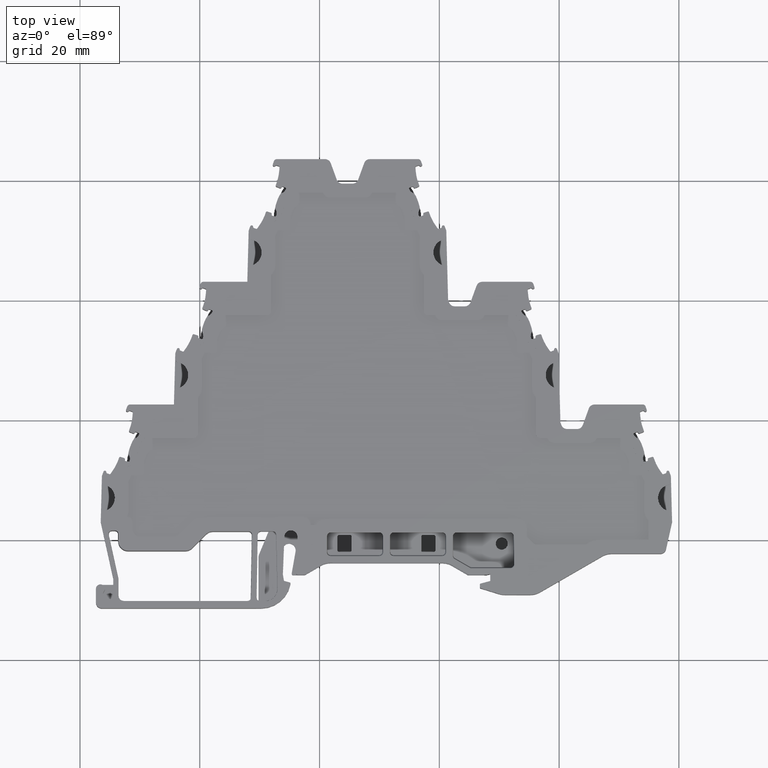
[diagram: clean part render]
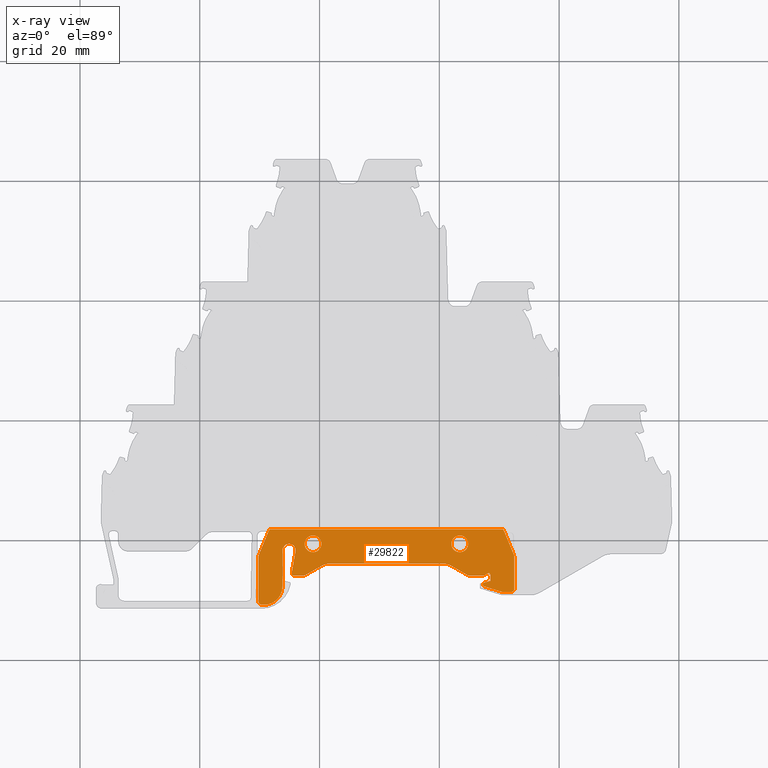
[diagram: x-ray — body ghosted, one internal face saturated and labeled with its STEP entity id]
A machine part, top view, then the same camera in x-ray: the body is ghosted and one INTERNAL B-rep face — a face not visible from any outside direction — is saturated and labeled: STEP entity #29822.
In plain terms, the highlighted planar face has unit normal (0, -0, 1).
Its self-contained STEP definition (entity closure, byte-faithful):
#240 = CIRCLE ( 'NONE', #26142, 2.999999999999891642 ) ;
#325 = EDGE_CURVE ( 'NONE', #29279, #18801, #23444, .T. ) ;
#414 = EDGE_CURVE ( 'NONE', #26152, #15597, #3656, .T. ) ;
#714 = AXIS2_PLACEMENT_3D ( 'NONE', #6016, #19792, #22988 ) ;
#840 = ORIENTED_EDGE ( 'NONE', *, *, #31770, .T. ) ;
#1005 = CARTESIAN_POINT ( 'NONE',  ( 1253.811855569803811, 752.3099273790719508, 2.925000000002854872 ) ) ;
#1011 = CARTESIAN_POINT ( 'NONE',  ( 1284.936141302275928, 754.6099145043730232, 2.925000000009629897 ) ) ;
#1031 = CIRCLE ( 'NONE', #36522, 1.999999999999779732 ) ;
#1363 = CARTESIAN_POINT ( 'NONE',  ( 1292.511858430823850, 751.8485278146081328, 2.925000000001610090 ) ) ;
#1431 = CARTESIAN_POINT ( 'NONE',  ( 1287.410230152805980, 754.1099145043660883, 2.925000000008290080 ) ) ;
#1462 = EDGE_CURVE ( 'NONE', #23473, #7901, #27103, .T. ) ;
#1498 = VERTEX_POINT ( 'NONE', #1431 ) ;
#1582 = VERTEX_POINT ( 'NONE', #19725 ) ;
#1717 = CARTESIAN_POINT ( 'NONE',  ( 1287.452812872483946, 752.8761448930290499, 2.925000000004515321 ) ) ;
#1894 = ORIENTED_EDGE ( 'NONE', *, *, #22036, .F. ) ;
#2020 = CIRCLE ( 'NONE', #5657, 0.2999999999997449152 ) ;
#2101 = DIRECTION ( 'NONE',  ( 0.000000000000000000, -1.000000000000000000, -4.731148508677230479E-12 ) ) ;
#2128 = CARTESIAN_POINT ( 'NONE',  ( 1292.435737963354086, 757.5829825613909634, 2.925000000018485480 ) ) ;
#2138 = CARTESIAN_POINT ( 'NONE',  ( 1291.511858430842040, 757.2002991290289629, 2.925000000017380142 ) ) ;
#2167 = DIRECTION ( 'NONE',  ( -3.108624468950090558E-12, -1.000000000000000000, -2.961172973492078515E-12 ) ) ;
#2362 = DIRECTION ( 'NONE',  ( -1.776356830050185078E-15, 2.961114267037269966E-12, -1.000000000000000000 ) ) ;
#2365 = EDGE_CURVE ( 'NONE', #8663, #13167, #18823, .T. ) ;
#2600 = VERTEX_POINT ( 'NONE', #3907 ) ;
#2743 = AXIS2_PLACEMENT_3D ( 'NONE', #34006, #8407, #2167 ) ;
#2902 = EDGE_CURVE ( 'NONE', #13167, #28397, #5212, .T. ) ;
#2972 = DIRECTION ( 'NONE',  ( 1.776356830050185078E-15, -2.961114267037269966E-12, 1.000000000000000000 ) ) ;
#3001 = DIRECTION ( 'NONE',  ( 0.000000000000000000, -1.000000000000000000, -4.731148508677230479E-12 ) ) ;
#3004 = CARTESIAN_POINT ( 'NONE',  ( 1258.911855569846011, 757.9850622030869545, 2.925000000011626522 ) ) ;
#3138 = VECTOR ( 'NONE', #32093, 1000.000000000000000 ) ;
#3194 = VERTEX_POINT ( 'NONE', #16680 ) ;
#3350 = CARTESIAN_POINT ( 'NONE',  ( 1288.511858430829989, 753.1599273789660174, 2.925000000005400391 ) ) ;
#3355 = CIRCLE ( 'NONE', #24413, 3.083962780616844590 ) ;
#3500 = ORIENTED_EDGE ( 'NONE', *, *, #15295, .T. ) ;
#3616 = EDGE_CURVE ( 'NONE', #29126, #37273, #18345, .T. ) ;
#3656 = LINE ( 'NONE', #6479, #3138 ) ;
#3907 = CARTESIAN_POINT ( 'NONE',  ( 1258.911855569846011, 760.7850622030870227, 2.925000000024873703 ) ) ;
#4016 = EDGE_CURVE ( 'NONE', #27369, #18910, #37248, .T. ) ;
#4223 = CARTESIAN_POINT ( 'NONE',  ( 1284.936141302275928, 754.1099145043730232, 2.925000000008294965 ) ) ;
#4697 = ORIENTED_EDGE ( 'NONE', *, *, #21969, .T. ) ;
#4963 = ORIENTED_EDGE ( 'NONE', *, *, #21595, .T. ) ;
#5061 = CARTESIAN_POINT ( 'NONE',  ( 1261.762938052043864, 756.0945901753040062, 2.925000000013930013 ) ) ;
#5102 = ORIENTED_EDGE ( 'NONE', *, *, #10842, .T. ) ;
#5142 = CARTESIAN_POINT ( 'NONE',  ( 1287.267520204509992, 752.5328591790330393, 2.925000000003625367 ) ) ;
#5212 = LINE ( 'NONE', #13880, #13573 ) ;
#5236 = CARTESIAN_POINT ( 'NONE',  ( 1251.688721857542077, 761.8130462823679636, 2.925000000030876457 ) ) ;
#5299 = ORIENTED_EDGE ( 'NONE', *, *, #27513, .F. ) ;
#5360 = VECTOR ( 'NONE', #5858, 1000.000000000000000 ) ;
#5548 = DIRECTION ( 'NONE',  ( -1.776356830050185078E-15, 2.961114267037269966E-12, -1.000000000000000000 ) ) ;
#5551 = DIRECTION ( 'NONE',  ( -1.776356830050185078E-15, 2.961114267037269966E-12, -1.000000000000000000 ) ) ;
#5657 = AXIS2_PLACEMENT_3D ( 'NONE', #33579, #13242, #27754 ) ;
#5691 = CIRCLE ( 'NONE', #26758, 0.2999999999999669598 ) ;
#5784 = EDGE_CURVE ( 'NONE', #13312, #32119, #6366, .T. ) ;
#5812 = EDGE_CURVE ( 'NONE', #18801, #25091, #3355, .T. ) ;
#5858 = DIRECTION ( 'NONE',  ( 5.241255640397440142E-12, 1.000000000000000000, 2.967515460675540136E-12 ) ) ;
#5958 = DIRECTION ( 'NONE',  ( 1.776356830050185078E-15, -2.961114267037269966E-12, 1.000000000000000000 ) ) ;
#6016 = CARTESIAN_POINT ( 'NONE',  ( 1292.011858430824077, 751.8485278146090423, 2.925000000001610090 ) ) ;
#6186 = DIRECTION ( 'NONE',  ( 3.060176890657050133E-12, 1.000000000000000000, 4.731069912806530501E-12 ) ) ;
#6239 = EDGE_CURVE ( 'NONE', #33395, #2600, #28653, .T. ) ;
#6255 = ORIENTED_EDGE ( 'NONE', *, *, #34212, .T. ) ;
#6285 = ORIENTED_EDGE ( 'NONE', *, *, #2365, .T. ) ;
#6316 = CARTESIAN_POINT ( 'NONE',  ( 1290.837735783956077, 761.4409010956278507, 2.925000000029815084 ) ) ;
#6330 = VECTOR ( 'NONE', #33388, 1000.000000000000000 ) ;
#6366 = CIRCLE ( 'NONE', #2743, 0.5000000000000559552 ) ;
#6387 = ORIENTED_EDGE ( 'NONE', *, *, #33724, .T. ) ;
#6445 = ORIENTED_EDGE ( 'NONE', *, *, #4016, .T. ) ;
#6479 = CARTESIAN_POINT ( 'NONE',  ( 1287.560225396755868, 754.1501041373810494, 2.925000000008290080 ) ) ;
#6577 = DIRECTION ( 'NONE',  ( -2.960594732334076854E-12, -1.000000000000000000, -2.960594732334076854E-12 ) ) ;
#6806 = ORIENTED_EDGE ( 'NONE', *, *, #12502, .F. ) ;
#6852 = CARTESIAN_POINT ( 'NONE',  ( 1250.811858430841994, 757.2003129434050379, 2.925000000017300206 ) ) ;
#7081 = CARTESIAN_POINT ( 'NONE',  ( 1284.936141302275928, 754.1099145043730232, 2.925000000008294965 ) ) ;
#7133 = ORIENTED_EDGE ( 'NONE', *, *, #2902, .T. ) ;
#7364 = DIRECTION ( 'NONE',  ( -1.000000000000000000, 2.906425021968365003E-12, 3.491481338098295227E-15 ) ) ;
#7395 = DIRECTION ( 'NONE',  ( -3.101666818361324906E-12, -1.000000000000000000, -2.967515460675544983E-12 ) ) ;
#7417 = EDGE_LOOP ( 'NONE', ( #19159, #29010, #25562, #25054, #36173, #4697, #12012, #24582, #25756, #6387, #6445, #16759, #28025, #6255, #26220, #3500, #21936, #21063, #22741, #10500, #10198, #20044, #15316, #5102, #36641, #4963, #11953, #31160, #28563, #15142, #9524, #22967, #34968, #6285, #7133, #22822, #840 ) ) ;
#7694 = AXIS2_PLACEMENT_3D ( 'NONE', #16385, #36718, #8277 ) ;
#7730 = FACE_BOUND ( 'NONE', #25542, .T. ) ;
#7811 = VERTEX_POINT ( 'NONE', #1717 ) ;
#7901 = VERTEX_POINT ( 'NONE', #8310 ) ;
#8277 = DIRECTION ( 'NONE',  ( -3.095990026788391174E-12, -1.000000000000000000, -2.961131086213806190E-12 ) ) ;
#8310 = CARTESIAN_POINT ( 'NONE',  ( 1255.647547140237975, 754.1099145044630632, 2.925000000008180390 ) ) ;
#8386 = VECTOR ( 'NONE', #21415, 1000.000000000000000 ) ;
#8407 = DIRECTION ( 'NONE',  ( -1.776356830050185078E-15, 2.961114267037269966E-12, -1.000000000000000000 ) ) ;
#8411 = VERTEX_POINT ( 'NONE', #6316 ) ;
#8458 = DIRECTION ( 'NONE',  ( -1.776356830050185078E-15, 2.961114267037269966E-12, -1.000000000000000000 ) ) ;
#8663 = VERTEX_POINT ( 'NONE', #36810 ) ;
#8720 = EDGE_CURVE ( 'NONE', #35089, #24379, #31601, .T. ) ;
#8730 = DIRECTION ( 'NONE',  ( 0.3826834323621278178, -0.9238795325125136459, -2.689788538315124249E-12 ) ) ;
#8832 = AXIS2_PLACEMENT_3D ( 'NONE', #25105, #27926, #2101 ) ;
#9071 = CARTESIAN_POINT ( 'NONE',  ( 1287.267520204509992, 752.6346641253010148, 2.925000000003850076 ) ) ;
#9127 = DIRECTION ( 'NONE',  ( -1.776356830050185078E-15, 2.961114267037269966E-12, -1.000000000000000000 ) ) ;
#9303 = DIRECTION ( 'NONE',  ( -4.776389567471609391E-07, -0.9999999999998858691, -2.967515459007549818E-12 ) ) ;
#9524 = ORIENTED_EDGE ( 'NONE', *, *, #325, .T. ) ;
#9582 = DIRECTION ( 'NONE',  ( 3.713265354292279509E-12, 1.000000000000000000, 2.967515460675544983E-12 ) ) ;
#9699 = CARTESIAN_POINT ( 'NONE',  ( 1278.661855569839872, 761.8130462823684184, 2.925000000029701841 ) ) ;
#9850 = EDGE_CURVE ( 'NONE', #19934, #8411, #12377, .T. ) ;
#9904 = CARTESIAN_POINT ( 'NONE',  ( 1288.989976718932212, 760.6755342309039634, 2.925000000027380143 ) ) ;
#9911 = DIRECTION ( 'NONE',  ( -0.8660238551023851095, -0.5000026823864079928, -1.480741984239946048E-12 ) ) ;
#9985 = DIRECTION ( 'NONE',  ( 0.3826834323680105010, 0.9238795325100768174, 2.740290664466149557E-12 ) ) ;
#10016 = CARTESIAN_POINT ( 'NONE',  ( 1283.411855569846011, 759.3850622030870454, 2.925000000018205260 ) ) ;
#10196 = AXIS2_PLACEMENT_3D ( 'NONE', #17654, #5958, #20478 ) ;
#10198 = ORIENTED_EDGE ( 'NONE', *, *, #3616, .T. ) ;
#10328 = EDGE_CURVE ( 'NONE', #15597, #1498, #2020, .T. ) ;
#10500 = ORIENTED_EDGE ( 'NONE', *, *, #12106, .T. ) ;
#10812 = VECTOR ( 'NONE', #15569, 1000.000000000000000 ) ;
#10842 = EDGE_CURVE ( 'NONE', #19424, #14954, #240, .T. ) ;
#11206 = DIRECTION ( 'NONE',  ( -3.108624468950607950E-12, -1.000000000000000000, -2.961172973492571269E-12 ) ) ;
#11440 = DIRECTION ( 'NONE',  ( 3.119670624889734695E-12, 1.000000000000000000, 2.937768593559204923E-12 ) ) ;
#11486 = EDGE_CURVE ( 'NONE', #35069, #19934, #18895, .T. ) ;
#11639 = CARTESIAN_POINT ( 'NONE',  ( 1257.637576900582189, 754.1769025769059454, 2.925000000008395329 ) ) ;
#11661 = CARTESIAN_POINT ( 'NONE',  ( 1278.661855569839872, 762.9255342309370462, 2.925000000034965186 ) ) ;
#11953 = ORIENTED_EDGE ( 'NONE', *, *, #1462, .T. ) ;
#12012 = ORIENTED_EDGE ( 'NONE', *, *, #12799, .T. ) ;
#12106 = EDGE_CURVE ( 'NONE', #13354, #29126, #18419, .T. ) ;
#12377 = CIRCLE ( 'NONE', #36934, 1.999999999999890754 ) ;
#12502 = EDGE_CURVE ( 'NONE', #15852, #36727, #36900, .T. ) ;
#12515 = DIRECTION ( 'NONE',  ( -1.776356830050185078E-15, 2.961114267037269966E-12, -1.000000000000000000 ) ) ;
#12664 = LINE ( 'NONE', #29999, #35058 ) ;
#12799 = EDGE_CURVE ( 'NONE', #26649, #21127, #35008, .T. ) ;
#12898 = LINE ( 'NONE', #7081, #24562 ) ;
#13120 = CARTESIAN_POINT ( 'NONE',  ( 1280.560778809629710, 756.0945901752470490, 2.925000000014085000 ) ) ;
#13165 = AXIS2_PLACEMENT_3D ( 'NONE', #19031, #18302, #13187 ) ;
#13167 = VERTEX_POINT ( 'NONE', #20813 ) ;
#13187 = DIRECTION ( 'NONE',  ( -2.664535259097119481E-12, -1.000000000000000000, -2.961172973488790795E-12 ) ) ;
#13242 = DIRECTION ( 'NONE',  ( -1.776356830050185078E-15, 2.961114267037269966E-12, -1.000000000000000000 ) ) ;
#13312 = VERTEX_POINT ( 'NONE', #35858 ) ;
#13354 = VERTEX_POINT ( 'NONE', #4223 ) ;
#13371 = DIRECTION ( 'NONE',  ( -3.034609600642204269E-12, -1.000000000000000000, -2.961172973492516743E-12 ) ) ;
#13555 = EDGE_LOOP ( 'NONE', ( #33058, #5299 ) ) ;
#13573 = VECTOR ( 'NONE', #11440, 1000.000000000000000 ) ;
#13756 = EDGE_CURVE ( 'NONE', #21127, #13312, #12664, .T. ) ;
#13880 = CARTESIAN_POINT ( 'NONE',  ( 1249.811858430839948, 757.2003129434081075, 2.925000000017305091 ) ) ;
#14052 = AXIS2_PLACEMENT_3D ( 'NONE', #15994, #8458, #25580 ) ;
#14303 = CARTESIAN_POINT ( 'NONE',  ( 1290.419558251868011, 751.3709726541500231, 2.925000000000065103 ) ) ;
#14380 = EDGE_CURVE ( 'NONE', #30945, #7811, #17090, .T. ) ;
#14421 = CIRCLE ( 'NONE', #22225, 0.3000000000000779821 ) ;
#14456 = CARTESIAN_POINT ( 'NONE',  ( 1287.443457614903764, 752.2940815987999486, 2.925000000002740297 ) ) ;
#14571 = VECTOR ( 'NONE', #9303, 1000.000000000000114 ) ;
#14682 = DIRECTION ( 'NONE',  ( 1.776356830050185078E-15, -2.961114267037269966E-12, 1.000000000000000000 ) ) ;
#14946 = VECTOR ( 'NONE', #9582, 1000.000000000000000 ) ;
#14954 = VERTEX_POINT ( 'NONE', #24325 ) ;
#15070 = DIRECTION ( 'NONE',  ( 1.776356830050185078E-15, -2.961114267037269966E-12, 1.000000000000000000 ) ) ;
#15142 = ORIENTED_EDGE ( 'NONE', *, *, #33696, .T. ) ;
#15232 = LINE ( 'NONE', #23890, #14946 ) ;
#15295 = EDGE_CURVE ( 'NONE', #29715, #26152, #5691, .T. ) ;
#15316 = ORIENTED_EDGE ( 'NONE', *, *, #24929, .T. ) ;
#15427 = LINE ( 'NONE', #33281, #19234 ) ;
#15551 = CARTESIAN_POINT ( 'NONE',  ( 1253.811855569803811, 752.3099273790719508, 2.925000000002854872 ) ) ;
#15569 = DIRECTION ( 'NONE',  ( -1.000000000000000000, 3.012927930994425004E-12, -8.320758577248530668E-15 ) ) ;
#15581 = CARTESIAN_POINT ( 'NONE',  ( 1283.411855569846011, 757.9850622030869545, 2.925000000011581669 ) ) ;
#15597 = VERTEX_POINT ( 'NONE', #28588 ) ;
#15617 = DIRECTION ( 'NONE',  ( 0.1736481776697454682, 0.9848077530117116396, 2.921825943485178775E-12 ) ) ;
#15706 = CARTESIAN_POINT ( 'NONE',  ( 1282.060786856795858, 755.6926617405439401, 2.925000000012970336 ) ) ;
#15852 = VERTEX_POINT ( 'NONE', #15581 ) ;
#15947 = EDGE_CURVE ( 'NONE', #14954, #23315, #18591, .T. ) ;
#15994 = CARTESIAN_POINT ( 'NONE',  ( 1287.517520204509992, 752.6346641253010148, 2.925000000003850076 ) ) ;
#15997 = AXIS2_PLACEMENT_3D ( 'NONE', #1011, #12515, #21345 ) ;
#16030 = FACE_BOUND ( 'NONE', #13555, .T. ) ;
#16117 = LINE ( 'NONE', #29891, #10812 ) ;
#16237 = EDGE_CURVE ( 'NONE', #28397, #17760, #29867, .T. ) ;
#16318 = CARTESIAN_POINT ( 'NONE',  ( 1257.637576900582189, 754.1769025769059454, 2.925000000008395329 ) ) ;
#16385 = CARTESIAN_POINT ( 'NONE',  ( 1250.727985005155915, 752.2860784224440067, 2.925000000002645262 ) ) ;
#16544 = CARTESIAN_POINT ( 'NONE',  ( 1292.435737963354086, 757.5829825613909634, 2.925000000018485480 ) ) ;
#16680 = CARTESIAN_POINT ( 'NONE',  ( 1251.485975355703886, 761.4409010957499504, 2.925000000029955416 ) ) ;
#16703 = DIRECTION ( 'NONE',  ( -3.095990026788391174E-12, -1.000000000000000000, -2.961131086213806190E-12 ) ) ;
#16754 = CARTESIAN_POINT ( 'NONE',  ( 1283.411855569846011, 760.7850622030870227, 2.925000000024828850 ) ) ;
#16759 = ORIENTED_EDGE ( 'NONE', *, *, #24402, .T. ) ;
#16848 = DIRECTION ( 'NONE',  ( 0.000000000000000000, -1.000000000000000000, -4.731148508677230479E-12 ) ) ;
#16872 = CARTESIAN_POINT ( 'NONE',  ( 1250.727985005146593, 749.2021156418271630, 2.924999999993513011 ) ) ;
#16896 = CARTESIAN_POINT ( 'NONE',  ( 1250.727985005155915, 752.2860784224440067, 2.925000000002645262 ) ) ;
#17003 = CARTESIAN_POINT ( 'NONE',  ( 1292.511858430839993, 757.2002991290260070, 2.925000000017375257 ) ) ;
#17090 = CIRCLE ( 'NONE', #14052, 0.2500000000000834888 ) ;
#17100 = CARTESIAN_POINT ( 'NONE',  ( 1290.634989282036713, 761.8130462823684184, 2.925000000029815084 ) ) ;
#17524 = DIRECTION ( 'NONE',  ( -3.034609600640856466E-12, -1.000000000000000000, -2.961172973491201655E-12 ) ) ;
#17592 = AXIS2_PLACEMENT_3D ( 'NONE', #20339, #14682, #17524 ) ;
#17654 = CARTESIAN_POINT ( 'NONE',  ( 1254.911858430844177, 758.2998951783170014, 2.925000000020614888 ) ) ;
#17760 = VERTEX_POINT ( 'NONE', #29061 ) ;
#18035 = AXIS2_PLACEMENT_3D ( 'NONE', #28816, #31273, #3001 ) ;
#18302 = DIRECTION ( 'NONE',  ( -1.776356830050185078E-15, 2.961114267037269966E-12, -1.000000000000000000 ) ) ;
#18345 = LINE ( 'NONE', #15706, #33709 ) ;
#18419 = CIRCLE ( 'NONE', #15997, 0.5000000000000559552 ) ;
#18591 = LINE ( 'NONE', #16318, #26226 ) ;
#18722 = DIRECTION ( 'NONE',  ( -1.776356830050185078E-15, 2.961114267037269966E-12, -1.000000000000000000 ) ) ;
#18801 = VERTEX_POINT ( 'NONE', #15551 ) ;
#18823 = CIRCLE ( 'NONE', #21219, 0.4999999999895088365 ) ;
#18875 = DIRECTION ( 'NONE',  ( -1.776356830050185078E-15, 2.961114267037269966E-12, -1.000000000000000000 ) ) ;
#18895 = LINE ( 'NONE', #9699, #6330 ) ;
#18910 = VERTEX_POINT ( 'NONE', #5142 ) ;
#19024 = CARTESIAN_POINT ( 'NONE',  ( 1253.333734420723886, 760.6755342310149217, 2.925000000027504932 ) ) ;
#19031 = CARTESIAN_POINT ( 'NONE',  ( 1287.517520204509992, 752.5328591790320161, 2.925000000003625367 ) ) ;
#19065 = VECTOR ( 'NONE', #8730, 1000.000000000000114 ) ;
#19069 = CARTESIAN_POINT ( 'NONE',  ( 1255.995146959158092, 758.1088821828810751, 2.925000000019945201 ) ) ;
#19122 = CIRCLE ( 'NONE', #7694, 3.083962780616844590 ) ;
#19159 = ORIENTED_EDGE ( 'NONE', *, *, #19386, .T. ) ;
#19234 = VECTOR ( 'NONE', #15617, 1000.000000000000114 ) ;
#19290 = VECTOR ( 'NONE', #34374, 1000.000000000000114 ) ;
#19386 = EDGE_CURVE ( 'NONE', #3194, #35069, #1031, .T. ) ;
#19424 = VERTEX_POINT ( 'NONE', #5061 ) ;
#19725 = CARTESIAN_POINT ( 'NONE',  ( 1255.352104814335917, 754.4620089577639419, 2.925000000009069900 ) ) ;
#19792 = DIRECTION ( 'NONE',  ( -1.776356830050185078E-15, 2.961114267037269966E-12, -1.000000000000000000 ) ) ;
#19934 = VERTEX_POINT ( 'NONE', #17100 ) ;
#20044 = ORIENTED_EDGE ( 'NONE', *, *, #29872, .T. ) ;
#20206 = EDGE_CURVE ( 'NONE', #1498, #13354, #12898, .T. ) ;
#20339 = CARTESIAN_POINT ( 'NONE',  ( 1280.560778809619933, 753.0945901752460259, 2.925000000005204992 ) ) ;
#20478 = DIRECTION ( 'NONE',  ( -3.027880976251065820E-12, -1.000000000000000000, -2.961251824560124467E-12 ) ) ;
#20482 = CARTESIAN_POINT ( 'NONE',  ( 1253.811858430844040, 758.2998951783209804, 2.925000000020619773 ) ) ;
#20761 = AXIS2_PLACEMENT_3D ( 'NONE', #2138, #33984, #36624 ) ;
#20813 = CARTESIAN_POINT ( 'NONE',  ( 1249.811858430817892, 749.7358426831749512, 2.924999999995320010 ) ) ;
#21043 = CIRCLE ( 'NONE', #10196, 1.099999999999767830 ) ;
#21063 = ORIENTED_EDGE ( 'NONE', *, *, #10328, .T. ) ;
#21127 = VERTEX_POINT ( 'NONE', #24496 ) ;
#21219 = AXIS2_PLACEMENT_3D ( 'NONE', #30188, #18875, #35827 ) ;
#21345 = DIRECTION ( 'NONE',  ( -3.108624468950090558E-12, -1.000000000000000000, -2.961172973492078515E-12 ) ) ;
#21415 = DIRECTION ( 'NONE',  ( -1.000000000000000000, 3.123981769497315067E-12, 3.491481338743900175E-15 ) ) ;
#21595 = EDGE_CURVE ( 'NONE', #23315, #23473, #28636, .T. ) ;
#21750 = DIRECTION ( 'NONE',  ( -1.000000000000000000, 3.015302874738534922E-12, 3.491481338421395299E-15 ) ) ;
#21887 = DIRECTION ( 'NONE',  ( -3.108624468950090558E-12, -1.000000000000000000, -2.961172973492078515E-12 ) ) ;
#21936 = ORIENTED_EDGE ( 'NONE', *, *, #414, .T. ) ;
#21969 = EDGE_CURVE ( 'NONE', #24379, #26649, #24548, .T. ) ;
#22036 = EDGE_CURVE ( 'NONE', #36727, #15852, #25037, .T. ) ;
#22225 = AXIS2_PLACEMENT_3D ( 'NONE', #22749, #9127, #23805 ) ;
#22705 = VECTOR ( 'NONE', #9985, 1000.000000000000114 ) ;
#22741 = ORIENTED_EDGE ( 'NONE', *, *, #20206, .T. ) ;
#22749 = CARTESIAN_POINT ( 'NONE',  ( 1255.647547140240022, 754.4099145044630177, 2.925000000009065015 ) ) ;
#22822 = ORIENTED_EDGE ( 'NONE', *, *, #16237, .T. ) ;
#22887 = CARTESIAN_POINT ( 'NONE',  ( 1288.511858430829989, 753.1599273789660174, 2.925000000005400391 ) ) ;
#22967 = ORIENTED_EDGE ( 'NONE', *, *, #5812, .T. ) ;
#22988 = DIRECTION ( 'NONE',  ( -3.108624468949400298E-12, -1.000000000000000000, -2.961172973491420971E-12 ) ) ;
#23067 = AXIS2_PLACEMENT_3D ( 'NONE', #10016, #24312, #35802 ) ;
#23294 = LINE ( 'NONE', #14456, #24631 ) ;
#23297 = CARTESIAN_POINT ( 'NONE',  ( 1284.686139961080016, 754.1769025768239771, 2.925000000008520118 ) ) ;
#23298 = VERTEX_POINT ( 'NONE', #3350 ) ;
#23315 = VERTEX_POINT ( 'NONE', #11639 ) ;
#23444 = LINE ( 'NONE', #1005, #14571 ) ;
#23473 = VERTEX_POINT ( 'NONE', #24620 ) ;
#23805 = DIRECTION ( 'NONE',  ( -2.960594732332981082E-12, -1.000000000000000000, -2.960594732332981082E-12 ) ) ;
#23890 = CARTESIAN_POINT ( 'NONE',  ( 1288.511858430832035, 754.1799022397480030, 2.925000000008510348 ) ) ;
#24312 = DIRECTION ( 'NONE',  ( -1.776356824646915045E-15, 4.731069912806530501E-12, -1.000000000000000000 ) ) ;
#24325 = CARTESIAN_POINT ( 'NONE',  ( 1260.262930004875898, 755.6926617406110154, 2.925000000013049828 ) ) ;
#24379 = VERTEX_POINT ( 'NONE', #17003 ) ;
#24402 = EDGE_CURVE ( 'NONE', #18910, #30945, #32037, .T. ) ;
#24413 = AXIS2_PLACEMENT_3D ( 'NONE', #16896, #2362, #16703 ) ;
#24496 = CARTESIAN_POINT ( 'NONE',  ( 1292.011858430822031, 751.3485278146090423, 2.925000000000055334 ) ) ;
#24548 = LINE ( 'NONE', #36216, #37068 ) ;
#24562 = VECTOR ( 'NONE', #21750, 1000.000000000000000 ) ;
#24582 = ORIENTED_EDGE ( 'NONE', *, *, #13756, .T. ) ;
#24620 = CARTESIAN_POINT ( 'NONE',  ( 1257.387575559390143, 754.1099145044580609, 2.925000000008175061 ) ) ;
#24631 = VECTOR ( 'NONE', #34970, 1000.000000000000000 ) ;
#24929 = EDGE_CURVE ( 'NONE', #35517, #19424, #16117, .T. ) ;
#25037 = CIRCLE ( 'NONE', #8832, 1.400000000000067857 ) ;
#25054 = ORIENTED_EDGE ( 'NONE', *, *, #31197, .T. ) ;
#25091 = VERTEX_POINT ( 'NONE', #16872 ) ;
#25105 = CARTESIAN_POINT ( 'NONE',  ( 1283.411855569846011, 759.3850622030870454, 2.925000000018205260 ) ) ;
#25338 = CARTESIAN_POINT ( 'NONE',  ( 1257.387575559390143, 754.6099145044580609, 2.925000000009505108 ) ) ;
#25542 = EDGE_LOOP ( 'NONE', ( #6806, #1894 ) ) ;
#25562 = ORIENTED_EDGE ( 'NONE', *, *, #9850, .T. ) ;
#25580 = DIRECTION ( 'NONE',  ( -2.664535259099485912E-12, -1.000000000000000000, -2.961172973491420971E-12 ) ) ;
#25617 = PLANE ( 'NONE',  #27185 ) ;
#25720 = LINE ( 'NONE', #22887, #19290 ) ;
#25756 = ORIENTED_EDGE ( 'NONE', *, *, #5784, .T. ) ;
#26002 = DIRECTION ( 'NONE',  ( 1.776356824646915045E-15, -4.731069912806536155E-12, 1.000000000000000000 ) ) ;
#26142 = AXIS2_PLACEMENT_3D ( 'NONE', #27708, #2972, #13371 ) ;
#26152 = VERTEX_POINT ( 'NONE', #31457 ) ;
#26213 = AXIS2_PLACEMENT_3D ( 'NONE', #25338, #5551, #34380 ) ;
#26220 = ORIENTED_EDGE ( 'NONE', *, *, #32302, .T. ) ;
#26226 = VECTOR ( 'NONE', #9911, 999.9999999999998863 ) ;
#26542 = EDGE_CURVE ( 'NONE', #7901, #1582, #14421, .T. ) ;
#26649 = VERTEX_POINT ( 'NONE', #1363 ) ;
#26758 = AXIS2_PLACEMENT_3D ( 'NONE', #32004, #15070, #6577 ) ;
#27103 = LINE ( 'NONE', #36474, #8386 ) ;
#27185 = AXIS2_PLACEMENT_3D ( 'NONE', #11661, #26002, #6186 ) ;
#27216 = CIRCLE ( 'NONE', #17592, 3.000000000001223910 ) ;
#27313 = CARTESIAN_POINT ( 'NONE',  ( 1251.485975355703886, 761.4409010957499504, 2.925000000029955416 ) ) ;
#27369 = VERTEX_POINT ( 'NONE', #30320 ) ;
#27513 = EDGE_CURVE ( 'NONE', #2600, #33395, #30052, .T. ) ;
#27708 = CARTESIAN_POINT ( 'NONE',  ( 1261.762938052035906, 753.0945901753040062, 2.925000000005270273 ) ) ;
#27754 = DIRECTION ( 'NONE',  ( -2.960594732336267994E-12, -1.000000000000000000, -2.960594732336267994E-12 ) ) ;
#27926 = DIRECTION ( 'NONE',  ( -1.776356824646915045E-15, 4.731069912806530501E-12, -1.000000000000000000 ) ) ;
#28025 = ORIENTED_EDGE ( 'NONE', *, *, #14380, .T. ) ;
#28048 = AXIS2_PLACEMENT_3D ( 'NONE', #6852, #18722, #21887 ) ;
#28148 = CARTESIAN_POINT ( 'NONE',  ( 1282.060786856795858, 755.6926617405439401, 2.925000000012970336 ) ) ;
#28397 = VERTEX_POINT ( 'NONE', #34328 ) ;
#28563 = ORIENTED_EDGE ( 'NONE', *, *, #33409, .T. ) ;
#28588 = CARTESIAN_POINT ( 'NONE',  ( 1287.560225396755868, 754.1501041373810494, 2.925000000008290080 ) ) ;
#28636 = CIRCLE ( 'NONE', #26213, 0.5000000000000559552 ) ;
#28641 = FACE_OUTER_BOUND ( 'NONE', #7417, .T. ) ;
#28653 = CIRCLE ( 'NONE', #32271, 1.400000000000067857 ) ;
#28816 = CARTESIAN_POINT ( 'NONE',  ( 1258.911855569846011, 759.3850622030870454, 2.925000000018250113 ) ) ;
#29010 = ORIENTED_EDGE ( 'NONE', *, *, #11486, .T. ) ;
#29061 = CARTESIAN_POINT ( 'NONE',  ( 1249.887978898330175, 757.5829963757719270, 2.925000000018414870 ) ) ;
#29126 = VERTEX_POINT ( 'NONE', #23297 ) ;
#29279 = VERTEX_POINT ( 'NONE', #20482 ) ;
#29715 = VERTEX_POINT ( 'NONE', #33334 ) ;
#29822 = ADVANCED_FACE ( 'NONE', ( #16030, #7730, #28641 ), #25617, .F. ) ;
#29867 = CIRCLE ( 'NONE', #28048, 1.000000000000111910 ) ;
#29872 = EDGE_CURVE ( 'NONE', #37273, #35517, #27216, .T. ) ;
#29891 = CARTESIAN_POINT ( 'NONE',  ( 1261.762938052043864, 756.0945901753040062, 2.925000000013930013 ) ) ;
#29999 = CARTESIAN_POINT ( 'NONE',  ( 1290.567683431072055, 751.3485278146140445, 2.925000000000065103 ) ) ;
#30052 = CIRCLE ( 'NONE', #18035, 1.400000000000067857 ) ;
#30148 = LINE ( 'NONE', #27313, #22705 ) ;
#30188 = CARTESIAN_POINT ( 'NONE',  ( 1250.311858430808115, 749.7358426831859788, 2.924999999995320010 ) ) ;
#30320 = CARTESIAN_POINT ( 'NONE',  ( 1287.443457614903764, 752.2940815987999486, 2.925000000002740297 ) ) ;
#30945 = VERTEX_POINT ( 'NONE', #33607 ) ;
#30966 = LINE ( 'NONE', #2128, #19065 ) ;
#31160 = ORIENTED_EDGE ( 'NONE', *, *, #26542, .T. ) ;
#31197 = EDGE_CURVE ( 'NONE', #8411, #35089, #30966, .T. ) ;
#31273 = DIRECTION ( 'NONE',  ( -1.776356824646915045E-15, 4.731069912806530501E-12, -1.000000000000000000 ) ) ;
#31457 = CARTESIAN_POINT ( 'NONE',  ( 1288.061863186884011, 754.4397126067340196, 2.925000000009175150 ) ) ;
#31601 = CIRCLE ( 'NONE', #20761, 0.9999999999996678213 ) ;
#31770 = EDGE_CURVE ( 'NONE', #17760, #3194, #30148, .T. ) ;
#31880 = EDGE_CURVE ( 'NONE', #25091, #8663, #19122, .T. ) ;
#32004 = CARTESIAN_POINT ( 'NONE',  ( 1288.211858430832081, 754.1799022397499357, 2.925000000008510348 ) ) ;
#32037 = LINE ( 'NONE', #9071, #5360 ) ;
#32093 = DIRECTION ( 'NONE',  ( -0.8660345566149691976, -0.4999841464973801552, -1.480686941338548267E-12 ) ) ;
#32119 = VERTEX_POINT ( 'NONE', #14303 ) ;
#32271 = AXIS2_PLACEMENT_3D ( 'NONE', #34157, #33958, #16848 ) ;
#32302 = EDGE_CURVE ( 'NONE', #23298, #29715, #15232, .T. ) ;
#32702 = VERTEX_POINT ( 'NONE', #19069 ) ;
#33058 = ORIENTED_EDGE ( 'NONE', *, *, #6239, .F. ) ;
#33281 = CARTESIAN_POINT ( 'NONE',  ( 1255.995146959158092, 758.1088821828810751, 2.925000000019945201 ) ) ;
#33334 = CARTESIAN_POINT ( 'NONE',  ( 1288.511858430832035, 754.1799022397480030, 2.925000000008510348 ) ) ;
#33388 = DIRECTION ( 'NONE',  ( 1.000000000000000000, 0.000000000000000000, -1.776356824646915045E-15 ) ) ;
#33395 = VERTEX_POINT ( 'NONE', #3004 ) ;
#33409 = EDGE_CURVE ( 'NONE', #1582, #32702, #15427, .T. ) ;
#33579 = CARTESIAN_POINT ( 'NONE',  ( 1287.410230152805980, 754.4099145043660428, 2.925000000009175150 ) ) ;
#33607 = CARTESIAN_POINT ( 'NONE',  ( 1287.267520204509992, 752.6346641253010148, 2.925000000003850076 ) ) ;
#33696 = EDGE_CURVE ( 'NONE', #32702, #29279, #21043, .T. ) ;
#33709 = VECTOR ( 'NONE', #35837, 1000.000000000000227 ) ;
#33724 = EDGE_CURVE ( 'NONE', #32119, #27369, #23294, .T. ) ;
#33883 = DIRECTION ( 'NONE',  ( -1.776356830050185078E-15, 2.961114267037269966E-12, -1.000000000000000000 ) ) ;
#33958 = DIRECTION ( 'NONE',  ( -1.776356824646915045E-15, 4.731069912806530501E-12, -1.000000000000000000 ) ) ;
#33984 = DIRECTION ( 'NONE',  ( -1.776356830050185078E-15, 2.961114267037269966E-12, -1.000000000000000000 ) ) ;
#34006 = CARTESIAN_POINT ( 'NONE',  ( 1290.567683431073874, 751.8485278146140445, 2.925000000001619860 ) ) ;
#34157 = CARTESIAN_POINT ( 'NONE',  ( 1258.911855569846011, 759.3850622030870454, 2.925000000018250113 ) ) ;
#34212 = EDGE_CURVE ( 'NONE', #7811, #23298, #25720, .T. ) ;
#34328 = CARTESIAN_POINT ( 'NONE',  ( 1249.811858430839948, 757.2003129434081075, 2.925000000017305091 ) ) ;
#34374 = DIRECTION ( 'NONE',  ( 0.9659230709110930846, 0.2588293280941775798, 7.647075304279440991E-13 ) ) ;
#34380 = DIRECTION ( 'NONE',  ( -3.108624468950090558E-12, -1.000000000000000000, -2.961172973492078515E-12 ) ) ;
#34968 = ORIENTED_EDGE ( 'NONE', *, *, #31880, .T. ) ;
#34970 = DIRECTION ( 'NONE',  ( -0.9551103209262932214, 0.2962503584134090207, 8.824622686755682398E-13 ) ) ;
#35008 = CIRCLE ( 'NONE', #714, 0.5000000000001669775 ) ;
#35058 = VECTOR ( 'NONE', #7364, 1000.000000000000000 ) ;
#35069 = VERTEX_POINT ( 'NONE', #5236 ) ;
#35089 = VERTEX_POINT ( 'NONE', #16544 ) ;
#35517 = VERTEX_POINT ( 'NONE', #13120 ) ;
#35802 = DIRECTION ( 'NONE',  ( 0.000000000000000000, -1.000000000000000000, -4.731148508677230479E-12 ) ) ;
#35827 = DIRECTION ( 'NONE',  ( -3.108624469015664413E-12, -1.000000000000000000, -2.961172973554541960E-12 ) ) ;
#35837 = DIRECTION ( 'NONE',  ( -0.8660238550993066831, 0.5000026823917397278, 1.486789396497695300E-12 ) ) ;
#35858 = CARTESIAN_POINT ( 'NONE',  ( 1290.567683431072055, 751.3485278146140445, 2.925000000000065103 ) ) ;
#36173 = ORIENTED_EDGE ( 'NONE', *, *, #8720, .T. ) ;
#36216 = CARTESIAN_POINT ( 'NONE',  ( 1292.511858430823850, 751.8485278146081328, 2.925000000001610090 ) ) ;
#36334 = DIRECTION ( 'NONE',  ( -3.108624468950780818E-12, -1.000000000000000000, -2.961172973492735655E-12 ) ) ;
#36474 = CARTESIAN_POINT ( 'NONE',  ( 1255.647547140237975, 754.1099145044630632, 2.925000000008180390 ) ) ;
#36522 = AXIS2_PLACEMENT_3D ( 'NONE', #19024, #33883, #36334 ) ;
#36624 = DIRECTION ( 'NONE',  ( -3.108624468951471077E-12, -1.000000000000000000, -2.961172973493393199E-12 ) ) ;
#36641 = ORIENTED_EDGE ( 'NONE', *, *, #15947, .T. ) ;
#36718 = DIRECTION ( 'NONE',  ( -1.776356830050185078E-15, 2.961114267037269966E-12, -1.000000000000000000 ) ) ;
#36727 = VERTEX_POINT ( 'NONE', #16754 ) ;
#36810 = CARTESIAN_POINT ( 'NONE',  ( 1250.231337423040031, 749.2423689074919366, 2.924999999993765254 ) ) ;
#36900 = CIRCLE ( 'NONE', #23067, 1.400000000000067857 ) ;
#36934 = AXIS2_PLACEMENT_3D ( 'NONE', #9904, #5548, #11206 ) ;
#37068 = VECTOR ( 'NONE', #7395, 1000.000000000000000 ) ;
#37248 = CIRCLE ( 'NONE', #13165, 0.2500000000003055334 ) ;
#37273 = VERTEX_POINT ( 'NONE', #28148 ) ;